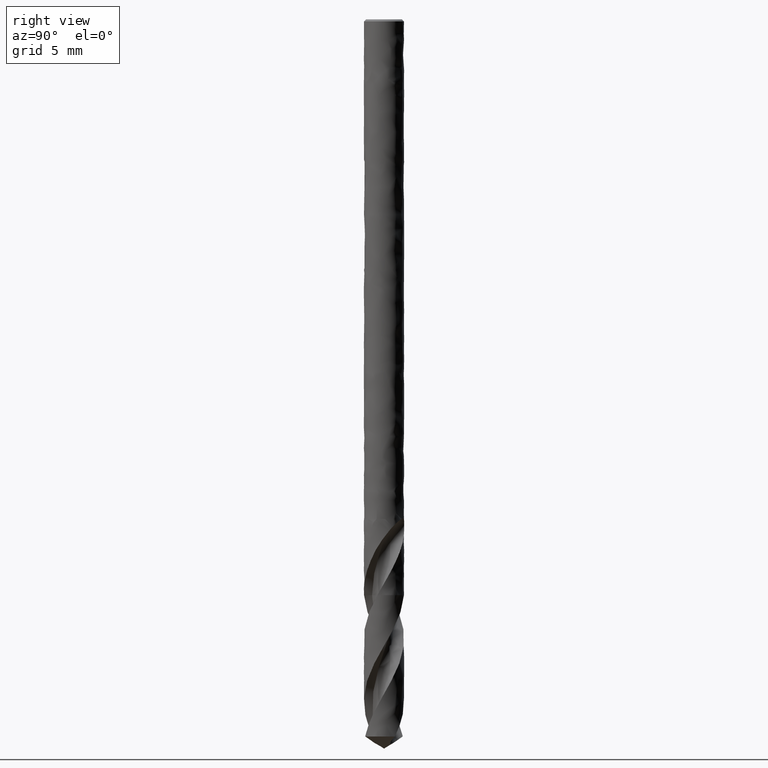
[diagram: clean part render]
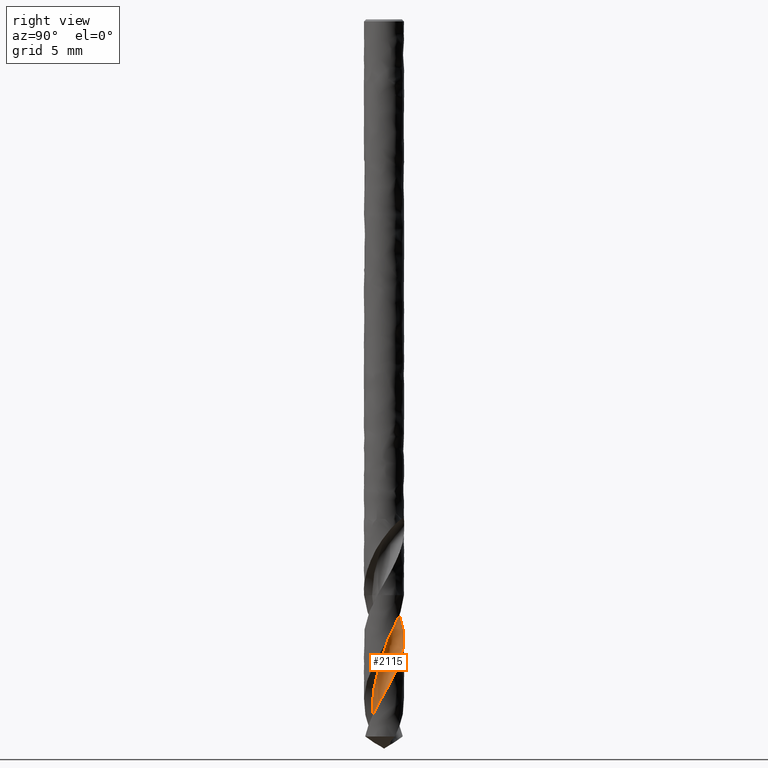
[diagram: same view with one face highlighted and labeled with its STEP entity id]
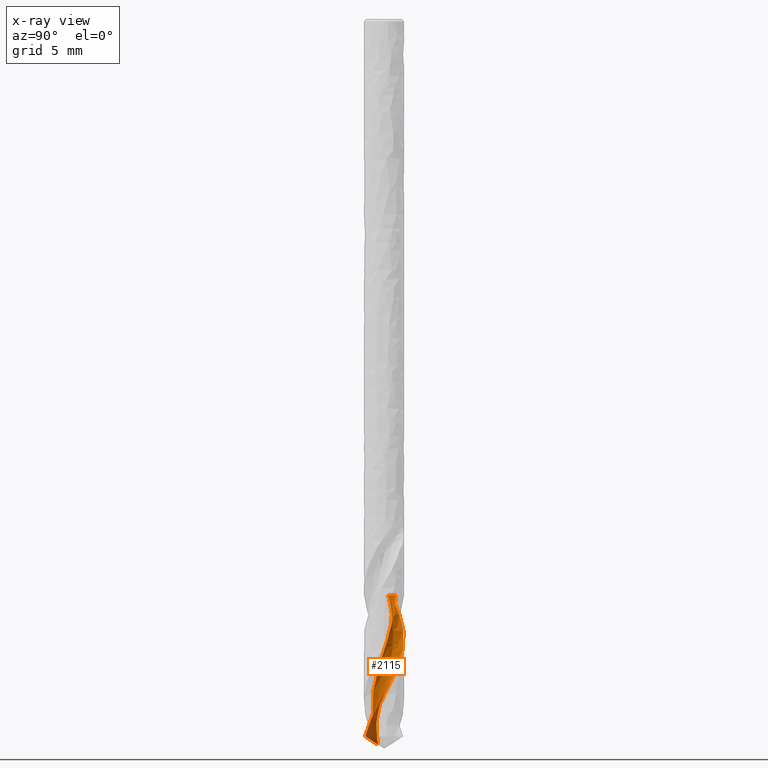
[diagram: x-ray of the same camera — body ghosted, the highlighted face saturated]
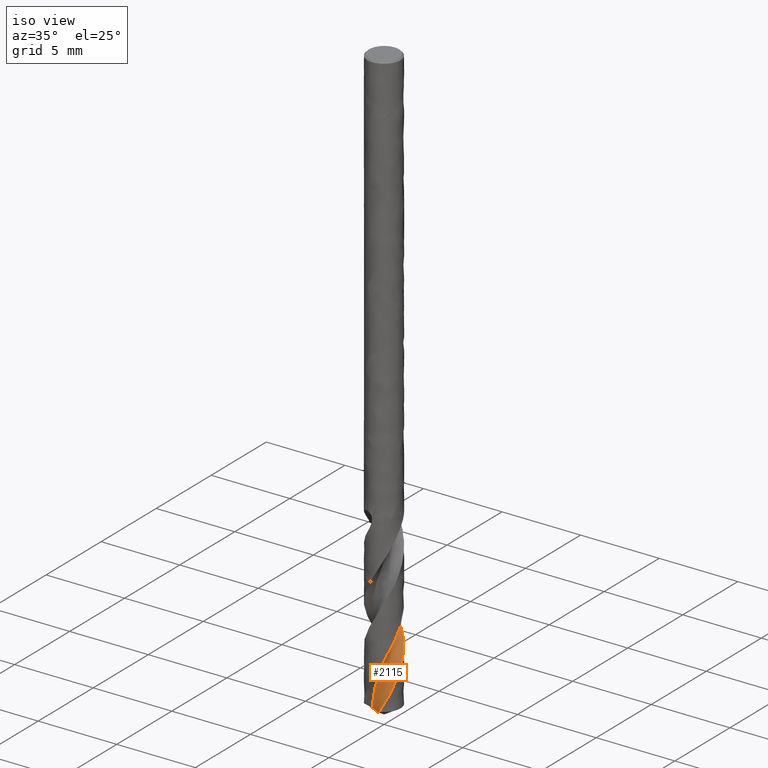
[diagram: same view with one face highlighted and labeled with its STEP entity id]
A machine part, right view. The second image highlights one B-rep face of the part: STEP entity #2115.
The next image is the same camera in x-ray: the body ghosted, the highlighted face saturated — about 0% of this face is hidden behind the body in this view.
A second angle (iso view) of the same face is appended — the face is thin or edge-on in the first view.
In plain terms, the highlighted face is a freeform B-spline surface patch.
Its self-contained STEP definition (entity closure, byte-faithful):
#1599 = VERTEX_POINT('', #1600);
#1600 = CARTESIAN_POINT('', (-0.989390204592491, 0.338738397540222, -30.));
#1703 = VERTEX_POINT('', #1704);
#1704 = CARTESIAN_POINT('', (-0.0081282973675064, 0.621970463097254, -30.));
#1710 = EDGE_CURVE('', #1703, #1599, #1711, .T.);
#1711 = B_SPLINE_CURVE_WITH_KNOTS('', 3, (#1712, #1713, #1714, #1715, #1716, #1717, #1718, #1719, #1720, #1721, #1722, #1723, #1724, #1725, #1726, #1727, #1728, #1729, #1730, #1731, #1732, #1733, #1734, #1735, #1736, #1737, #1738, #1739, #1740, #1741, #1742, #1743, #1744, #1745, #1746, #1747, #1748, #1749, #1750, #1751, #1752, #1753, #1754, #1755, #1756, #1757), .UNSPECIFIED., .F., .U., (4, 3, 3, 3, 3, 3, 3, 3, 3, 3, 3, 3, 3, 3, 3, 4), (0., 0.0883401907301089, 0.176447770333646, 0.264331218393826, 0.351996399852826, 0.439446834063498, 0.52668385625376, 0.584820149875085, 0.610738380480793, 0.699044365433473, 0.787119138271106, 0.874970779840194, 0.962604802702614, 1.05002440330233, 1.13723060942003, 1.19592757691678), .UNSPECIFIED.);
#1712 = CARTESIAN_POINT('', (-0.00812829736750605, 0.621970463097252, -30.));
#1713 = CARTESIAN_POINT('', (-0.0176664654834315, 0.59411129457021, -30.));
#1714 = CARTESIAN_POINT('', (-0.0292123244834765, 0.566861669460078, -30.));
#1715 = CARTESIAN_POINT('', (-0.0425926385168949, 0.54063044534848, -30.));
#1716 = CARTESIAN_POINT('', (-0.0559377204561162, 0.514468291436318, -30.));
#1717 = CARTESIAN_POINT('', (-0.0711740399842842, 0.489188828805253, -30.));
#1718 = CARTESIAN_POINT('', (-0.0880741868528203, 0.465169367006327, -30.));
#1719 = CARTESIAN_POINT('', (-0.104931342459791, 0.441211006863669, -30.));
#1720 = CARTESIAN_POINT('', (-0.123527374527527, 0.418387474144315, -30.));
#1721 = CARTESIAN_POINT('', (-0.143586132381245, 0.397037697816474, -30.));
#1722 = CARTESIAN_POINT('', (-0.163595072470671, 0.375740945615678, -30.));
#1723 = CARTESIAN_POINT('', (-0.18515811865467, 0.355805578966732, -30.));
#1724 = CARTESIAN_POINT('', (-0.207956642869816, 0.337526174397222, -30.));
#1725 = CARTESIAN_POINT('', (-0.230699319138722, 0.319291547603416, -30.));
#1726 = CARTESIAN_POINT('', (-0.254783003573362, 0.302615257142334, -30.));
#1727 = CARTESIAN_POINT('', (-0.279853556688851, 0.287742520182878, -30.));
#1728 = CARTESIAN_POINT('', (-0.304862928205397, 0.272906078307285, -30.));
#1729 = CARTESIAN_POINT('', (-0.330976466204993, 0.259791901975459, -30.));
#1730 = CARTESIAN_POINT('', (-0.357812048160874, 0.248591892499138, -30.));
#1731 = CARTESIAN_POINT('', (-0.375695754331903, 0.241128008208626, -30.));
#1732 = CARTESIAN_POINT('', (-0.393947655706699, 0.234491724544062, -30.));
#1733 = CARTESIAN_POINT('', (-0.412448896149057, 0.228726256895386, -30.));
#1734 = CARTESIAN_POINT('', (-0.420697089943454, 0.226155905213846, -30.));
#1735 = CARTESIAN_POINT('', (-0.429000520278856, 0.223756533991124, -30.));
#1736 = CARTESIAN_POINT('', (-0.437348426126049, 0.221531252749764, -30.));
#1737 = CARTESIAN_POINT('', (-0.465790570165242, 0.213949498624477, -30.));
#1738 = CARTESIAN_POINT('', (-0.494843464924717, 0.208373360789011, -30.));
#1739 = CARTESIAN_POINT('', (-0.524071532533718, 0.204886439940149, -30.));
#1740 = CARTESIAN_POINT('', (-0.553223072109718, 0.201408648918047, -30.));
#1741 = CARTESIAN_POINT('', (-0.582693973668915, 0.199991782738162, -30.));
#1742 = CARTESIAN_POINT('', (-0.612044694472524, 0.200656973201974, -30.));
#1743 = CARTESIAN_POINT('', (-0.641321057280594, 0.201320478452334, -30.));
#1744 = CARTESIAN_POINT('', (-0.67062284091418, 0.204058738032074, -30.));
#1745 = CARTESIAN_POINT('', (-0.699515228256855, 0.208831118164451, -30.));
#1746 = CARTESIAN_POINT('', (-0.72833604580466, 0.213591676557659, -30.));
#1747 = CARTESIAN_POINT('', (-0.756891529550386, 0.220399700544904, -30.));
#1748 = CARTESIAN_POINT('', (-0.784760025909286, 0.229154662054413, -30.));
#1749 = CARTESIAN_POINT('', (-0.812560333842592, 0.237888201990481, -30.));
#1750 = CARTESIAN_POINT('', (-0.839813357230459, 0.248601944941351, -30.));
#1751 = CARTESIAN_POINT('', (-0.86611863442296, 0.261138460917778, -30.));
#1752 = CARTESIAN_POINT('', (-0.89235969945981, 0.273644374794508, -30.));
#1753 = CARTESIAN_POINT('', (-0.91778571903291, 0.288025159349685, -30.));
#1754 = CARTESIAN_POINT('', (-0.942024893006842, 0.304070526943537, -30.));
#1755 = CARTESIAN_POINT('', (-0.958339855785701, 0.314870382390275, -30.));
#1756 = CARTESIAN_POINT('', (-0.974163304934627, 0.326451965391084, -30.));
#1757 = CARTESIAN_POINT('', (-0.98939020459249, 0.338738397540221, -30.));
#1769 = VERTEX_POINT('', #1770);
#1770 = CARTESIAN_POINT('', (0.414746518957032, -0.964616672576738, -37.3041250124934));
#1873 = EDGE_CURVE('', #1769, #1874, #1876, .T.);
#1874 = VERTEX_POINT('', #1875);
#1875 = CARTESIAN_POINT('', (0.380658873556615, -0.978569783910481, -37.3690963500211));
#1876 = CIRCLE('', #1877, 4.31697492285645);
#1877 = AXIS2_PLACEMENT_3D('', #1878, #1879, #1880);
#1878 = CARTESIAN_POINT('', (-1.23375176341107, 3.0250589689259, -37.3389699574999));
#1879 = DIRECTION('', (0.805512264070602, 0.328523171466718, -0.493175950590965));
#1880 = DIRECTION('', (0.38186422482399, -0.924183186865683, 0.00807161163360696));
#1985 = EDGE_CURVE('', #1769, #1599, #1986, .T.);
#1986 = (
   BOUNDED_CURVE ()
   B_SPLINE_CURVE (3, (#1987, #1988, #1989, #1990, #1991, #1992, #1993, #1994, #1995, #1996, #1997, #1998, #1999, #2000, #2001, #2002, #2003, #2004, #2005, #2006, #2007, #2008, #2009, #2010, #2011, #2012, #2013, #2014, #2015, #2016, #2017, #2018, #2019, #2020, #2021, #2022, #2023, #2024, #2025, #2026, #2027, #2028), .UNSPECIFIED., .F., .U.)
   B_SPLINE_CURVE_WITH_KNOTS ((4, 1, 1, 1, 1, 1, 1, 1, 1, 1, 1, 1, 1, 1, 1, 1, 1, 1, 1, 1, 1, 1, 1, 1, 1, 1, 1, 1, 1, 1, 1, 1, 1, 1, 1, 1, 1, 1, 1, 4), (0.74587498750658, 0.77741935483871, 0.971774193548387, 1.16612903225806, 1.36048387096774, 1.55483870967742, 1.7491935483871, 1.94354838709677, 2.13790322580645, 2.33225806451613, 2.52661290322581, 2.72096774193548, 2.91532258064516, 3.10967741935484, 3.30403225806452, 3.49838709677419, 3.69274193548387, 3.88709677419355, 4.08145161290323, 4.2758064516129, 4.47016129032258, 4.66451612903226, 4.85887096774194, 5.05322580645161, 5.24758064516129, 5.44193548387097, 5.63629032258065, 5.83064516129032, 6.025, 6.21935483870968, 6.41370967741936, 6.60806451612903, 6.80241935483871, 6.99677419354839, 7.19112903225806, 7.38548387096774, 7.57983870967742, 7.7741935483871, 7.96854838709677, 8.05), .UNSPECIFIED.)
   CURVE ()
   GEOMETRIC_REPRESENTATION_ITEM ()
   RATIONAL_B_SPLINE_CURVE ((1., 1., 1., 1., 1., 1., 1., 1., 1., 1., 1., 1., 1., 1., 1., 1., 1., 1., 1., 1., 1., 1., 1., 1., 1., 1., 1., 1., 1., 1., 1., 1., 1., 1., 1., 1., 1., 1., 1., 1., 1., 1.))
   REPRESENTATION_ITEM ('')
);
#1987 = CARTESIAN_POINT('', (0.414746518957032, -0.964616672576738, -37.3041250124934));
#1988 = CARTESIAN_POINT('', (0.4202151141175, -0.962118653907839, -37.2936102233827));
#1989 = CARTESIAN_POINT('', (0.459217766386085, -0.943900164336568, -37.2183104880354));
#1990 = CARTESIAN_POINT('', (0.529574978386443, -0.90565383051671, -37.0782258064516));
#1991 = CARTESIAN_POINT('', (0.620901534711613, -0.842821003209366, -36.8838709677419));
#1992 = CARTESIAN_POINT('', (0.704980513974399, -0.770941911183171, -36.6895161290323));
#1993 = CARTESIAN_POINT('', (0.780933186865598, -0.690832317498943, -36.4951612903226));
#1994 = CARTESIAN_POINT('', (0.847970582937893, -0.603391429389025, -36.3008064516129));
#1995 = CARTESIAN_POINT('', (0.905401230281192, -0.509592288943727, -36.1064516129032));
#1996 = CARTESIAN_POINT('', (0.952637861196604, -0.410471398980581, -35.9120967741936));
#1997 = CARTESIAN_POINT('', (0.989203044485623, -0.307117780833926, -35.7177419354839));
#1998 = CARTESIAN_POINT('', (1.01473369007466, -0.200661548959796, -35.5233870967742));
#1999 = CARTESIAN_POINT('', (1.02898438934024, -0.092262122277869, -35.3290322580645));
#2000 = CARTESIAN_POINT('', (1.03182956377424, 0.0169038134656492, -35.1346774193548));
#2001 = CARTESIAN_POINT('', (1.02326440637361, 0.125654474101485, -34.9403225806452));
#2002 = CARTESIAN_POINT('', (1.00340461132918, 0.232815157965745, -34.7459677419355));
#2003 = CARTESIAN_POINT('', (0.972484898913985, 0.33723032137245, -34.5516129032258));
#2004 = CARTESIAN_POINT('', (0.930856353630322, 0.437775432153703, -34.3572580645161));
#2005 = CARTESIAN_POINT('', (0.878982604630458, 0.533368487261048, -34.1629032258065));
#2006 = CARTESIAN_POINT('', (0.817434888076038, 0.622981083899909, -33.9685483870968));
#2007 = CARTESIAN_POINT('', (0.746886041363156, 0.705648938102886, -33.7741935483871));
#2008 = CARTESIAN_POINT('', (0.668103488930987, 0.780481750001662, -33.5798387096774));
#2009 = CARTESIAN_POINT('', (0.581941288613748, 0.84667232128248, -33.3854838709677));
#2010 = CARTESIAN_POINT('', (0.489331316114671, 0.903504837353687, -33.1911290322581));
#2011 = CARTESIAN_POINT('', (0.391273673107693, 0.950362234556308, -32.9967741935484));
#2012 = CARTESIAN_POINT('', (0.288826411643974, 0.986732581245569, -32.8024193548387));
#2013 = CARTESIAN_POINT('', (0.18309467389795, 1.01221441069289, -32.608064516129));
#2014 = CARTESIAN_POINT('', (0.0752193517792459, 1.02652095343032, -32.4137096774194));
#2015 = CARTESIAN_POINT('', (-0.0336346244834258, 1.02948322680406, -32.2193548387097));
#2016 = CARTESIAN_POINT('', (-0.142290256052086, 1.02105195003878, -32.025));
#2017 = CARTESIAN_POINT('', (-0.249570588103148, 1.00129826395557, -31.8306451612903));
#2018 = CARTESIAN_POINT('', (-0.354310848353021, 0.970413245542477, -31.6362903225806));
#2019 = CARTESIAN_POINT('', (-0.455370493853069, 0.928706218769427, -31.441935483871));
#2020 = CARTESIAN_POINT('', (-0.551645048898602, 0.876601874235256, -31.2475806451613));
#2021 = CARTESIAN_POINT('', (-0.642077618190537, 0.814636221496981, -31.0532258064516));
#2022 = CARTESIAN_POINT('', (-0.725669962555841, 0.743451408585147, -30.8588709677419));
#2023 = CARTESIAN_POINT('', (-0.801493025597867, 0.663789455334788, -30.6645161290323));
#2024 = CARTESIAN_POINT('', (-0.86869681338132, 0.576484952553307, -30.4701612903226));
#2025 = CARTESIAN_POINT('', (-0.926519500425907, 0.482456807895692, -30.2758064516129));
#2026 = CARTESIAN_POINT('', (-0.965044486718553, 0.402015911788155, -30.1190860215054));
#2027 = CARTESIAN_POINT('', (-0.984083598341404, 0.353260094962428, -30.0271505376344));
#2028 = CARTESIAN_POINT('', (-0.989390204592491, 0.338738397540222, -30.));
#2115 = ADVANCED_FACE('', (#2116), #2254, .T.);
#2116 = FACE_OUTER_BOUND('', #2117, .T.);
#2117 = EDGE_LOOP('', (#2118, #2119, #2167, #2252, #2253));
#2118 = ORIENTED_EDGE('', *, *, #1710, .F.);
#2119 = ORIENTED_EDGE('', *, *, #2120, .F.);
#2120 = EDGE_CURVE('', #2121, #1703, #2123, .T.);
#2121 = VERTEX_POINT('', #2122);
#2122 = CARTESIAN_POINT('', (-0.526142050315062, -0.341171208440556, -37.6232152339215));
#2123 = B_SPLINE_CURVE_WITH_KNOTS('', 3, (#2124, #2125, #2126, #2127, #2128, #2129, #2130, #2131, #2132, #2133, #2134, #2135, #2136, #2137, #2138, #2139, #2140, #2141, #2142, #2143, #2144, #2145, #2146, #2147, #2148, #2149, #2150, #2151, #2152, #2153, #2154, #2155, #2156, #2157, #2158, #2159, #2160, #2161, #2162, #2163, #2164, #2165, #2166), .UNSPECIFIED., .F., .U., (4, 1, 1, 1, 1, 1, 1, 1, 1, 1, 1, 1, 1, 1, 1, 1, 1, 1, 1, 1, 1, 1, 1, 1, 1, 1, 1, 1, 1, 1, 1, 1, 1, 1, 1, 1, 1, 1, 1, 1, 4), (0.426784766078523, 0.583064516129032, 0.77741935483871, 0.971774193548387, 1.16612903225806, 1.36048387096774, 1.55483870967742, 1.7491935483871, 1.94354838709677, 2.13790322580645, 2.33225806451613, 2.52661290322581, 2.72096774193548, 2.91532258064516, 3.10967741935484, 3.30403225806452, 3.49838709677419, 3.69274193548387, 3.88709677419355, 4.08145161290323, 4.2758064516129, 4.47016129032258, 4.66451612903226, 4.85887096774194, 5.05322580645161, 5.24758064516129, 5.44193548387097, 5.63629032258065, 5.83064516129032, 6.025, 6.21935483870968, 6.41370967741936, 6.60806451612903, 6.80241935483871, 6.99677419354839, 7.19112903225806, 7.38548387096774, 7.57983870967742, 7.7741935483871, 7.96854838709677, 8.05), .UNSPECIFIED.);
#2124 = CARTESIAN_POINT('', (-0.526142050315062, -0.341171208440556, -37.6232152339215));
#2125 = CARTESIAN_POINT('', (-0.516105033938284, -0.355858412698825, -37.5711219839046));
#2126 = CARTESIAN_POINT('', (-0.492220866732757, -0.387828226709916, -37.4542437876512));
#2127 = CARTESIAN_POINT('', (-0.45064864692343, -0.433713145349973, -37.2725806451613));
#2128 = CARTESIAN_POINT('', (-0.401401515631753, -0.477780679634085, -37.0782258064516));
#2129 = CARTESIAN_POINT('', (-0.347939388904613, -0.516372148714711, -36.8838709677419));
#2130 = CARTESIAN_POINT('', (-0.290859367390927, -0.549094518377297, -36.6895161290323));
#2131 = CARTESIAN_POINT('', (-0.230794159708197, -0.575618706924926, -36.4951612903226));
#2132 = CARTESIAN_POINT('', (-0.168405265291884, -0.595682601360359, -36.3008064516129));
#2133 = CARTESIAN_POINT('', (-0.104376043649314, -0.609093471026532, -36.1064516129032));
#2134 = CARTESIAN_POINT('', (-0.039404561989231, -0.615729649071185, -35.9120967741936));
#2135 = CARTESIAN_POINT('', (0.0258036606906008, -0.615541499021846, -35.7177419354839));
#2136 = CARTESIAN_POINT('', (0.0905429546465419, -0.608551653044464, -35.5233870967742));
#2137 = CARTESIAN_POINT('', (0.154114771059895, -0.594854525348494, -35.3290322580645));
#2138 = CARTESIAN_POINT('', (0.215834854845357, -0.574615108268755, -35.1346774193548));
#2139 = CARTESIAN_POINT('', (0.27504024925523, -0.548067065919291, -34.9403225806452));
#2140 = CARTESIAN_POINT('', (0.331096065159513, -0.515510146588509, -34.7459677419355));
#2141 = CARTESIAN_POINT('', (0.383401950293094, -0.477306941337252, -34.5516129032258));
#2142 = CARTESIAN_POINT('', (0.431398196835692, -0.433879022211142, -34.3572580645161));
#2143 = CARTESIAN_POINT('', (0.474571429265047, -0.38570249912175, -34.1629032258065));
#2144 = CARTESIAN_POINT('', (0.512459818502224, -0.333303039721179, -33.9685483870968));
#2145 = CARTESIAN_POINT('', (0.544657772904084, -0.277250401456294, -33.7741935483871));
#2146 = CARTESIAN_POINT('', (0.570820061615212, -0.218152529402614, -33.5798387096774));
#2147 = CARTESIAN_POINT('', (0.590665331127154, -0.156649277409757, -33.3854838709677));
#2148 = CARTESIAN_POINT('', (0.603978981562124, -0.0934058135097181, -33.1911290322581));
#2149 = CARTESIAN_POINT('', (0.610615375154459, -0.0291057734191435, -32.9967741935484));
#2150 = CARTESIAN_POINT('', (0.610499355597011, 0.0355557717153783, -32.8024193548387));
#2151 = CARTESIAN_POINT('', (0.603627063300917, 0.099879465443065, -32.608064516129));
#2152 = CARTESIAN_POINT('', (0.590066038133553, 0.163168864978005, -32.4137096774193));
#2153 = CARTESIAN_POINT('', (0.569954607798243, 0.224737619447332, -32.2193548387097));
#2154 = CARTESIAN_POINT('', (0.543500566646285, 0.283916557928926, -32.025));
#2155 = CARTESIAN_POINT('', (0.51097915631376, 0.34006061847532, -31.8306451612903));
#2156 = CARTESIAN_POINT('', (0.472730366095309, 0.392555550617507, -31.6362903225806));
#2157 = CARTESIAN_POINT('', (0.429155577361056, 0.440824325733245, -31.441935483871));
#2158 = CARTESIAN_POINT('', (0.380713582498908, 0.484333192170945, -31.2475806451613));
#2159 = CARTESIAN_POINT('', (0.32791601491458, 0.522597314997597, -31.0532258064516));
#2160 = CARTESIAN_POINT('', (0.271322231955988, 0.555185944144197, -30.8588709677419));
#2161 = CARTESIAN_POINT('', (0.211533699208054, 0.581727057743867, -30.6645161290323));
#2162 = CARTESIAN_POINT('', (0.149187924877569, 0.601911436229346, -30.4701612903226));
#2163 = CARTESIAN_POINT('', (0.0849520149141438, 0.615496112376351, -30.2758064516129));
#2164 = CARTESIAN_POINT('', (0.032186760187741, 0.620988321804073, -30.1190860215054));
#2165 = CARTESIAN_POINT('', (0.00106758548481449, 0.621902222022237, -30.0271505376344));
#2166 = CARTESIAN_POINT('', (-0.00812829736750639, 0.621970463097254, -30.));
#2167 = ORIENTED_EDGE('', *, *, #2168, .T.);
#2168 = EDGE_CURVE('', #2121, #1874, #2169, .T.);
#2169 = B_SPLINE_CURVE_WITH_KNOTS('', 3, (#2170, #2171, #2172, #2173, #2174, #2175, #2176, #2177, #2178, #2179, #2180, #2181, #2182, #2183, #2184, #2185, #2186, #2187, #2188, #2189, #2190, #2191, #2192, #2193, #2194, #2195, #2196, #2197, #2198, #2199, #2200, #2201, #2202, #2203, #2204, #2205, #2206, #2207, #2208, #2209, #2210, #2211, #2212, #2213, #2214, #2215, #2216, #2217, #2218, #2219, #2220, #2221, #2222, #2223, #2224, #2225, #2226, #2227, #2228, #2229, #2230, #2231, #2232, #2233, #2234, #2235, #2236, #2237, #2238, #2239, #2240, #2241, #2242, #2243, #2244, #2245, #2246, #2247, #2248, #2249, #2250, #2251), .UNSPECIFIED., .F., .U., (4, 3, 3, 3, 3, 3, 3, 3, 3, 3, 3, 3, 3, 3, 3, 3, 3, 3, 3, 3, 3, 3, 3, 3, 3, 3, 3, 4), (0., 0.0584200043990707, 0.116781054589472, 0.175027823026524, 0.2138033855006, 0.252516026943997, 0.291170928282463, 0.329791560745907, 0.368418101904686, 0.40709293627138, 0.445840872019873, 0.484660773334097, 0.523533483837143, 0.562435050360691, 0.601345207776894, 0.618657088241367, 0.63600600736375, 0.695207347077197, 0.75414632257882, 0.812888178564505, 0.871479250392525, 0.929951423746157, 0.988326386654931, 1.04661874157269, 1.13380968116754, 1.22078361959114, 1.30755334033018, 1.33799535496574), .UNSPECIFIED.);
#2170 = CARTESIAN_POINT('', (-0.526142050315061, -0.341171208440557, -37.6232152339215));
#2171 = CARTESIAN_POINT('', (-0.510873079262389, -0.334301413507828, -37.6331588353212));
#2172 = CARTESIAN_POINT('', (-0.495093548102804, -0.328382703502577, -37.6430425673347));
#2173 = CARTESIAN_POINT('', (-0.478911309171095, -0.323535212777617, -37.6527300719179));
#2174 = CARTESIAN_POINT('', (-0.462745400451966, -0.318692613869811, -37.662407800412));
#2175 = CARTESIAN_POINT('', (-0.446119601572104, -0.31490265598158, -37.6719253372805));
#2176 = CARTESIAN_POINT('', (-0.429162279095745, -0.312279761711148, -37.6810913308318));
#2177 = CARTESIAN_POINT('', (-0.412238162199793, -0.309662003553845, -37.6902393756688));
#2178 = CARTESIAN_POINT('', (-0.394911217867674, -0.308197527528545, -37.699076872948));
#2179 = CARTESIAN_POINT('', (-0.37734185702581, -0.307981549202975, -37.707337383089));
#2180 = CARTESIAN_POINT('', (-0.365645725768511, -0.307837769877857, -37.7128365023643));
#2181 = CARTESIAN_POINT('', (-0.353810186951691, -0.308246089783427, -37.7180936854078));
#2182 = CARTESIAN_POINT('', (-0.341896179772468, -0.309222916844777, -37.7230092437191));
#2183 = CARTESIAN_POINT('', (-0.33000150542979, -0.310198158810732, -37.7279168255635));
#2184 = CARTESIAN_POINT('', (-0.317996696079643, -0.311743407683616, -37.7324962449879));
#2185 = CARTESIAN_POINT('', (-0.305958642164865, -0.313856657938518, -37.7366360717324));
#2186 = CARTESIAN_POINT('', (-0.293938543069761, -0.315966756269736, -37.7407697239039));
#2187 = CARTESIAN_POINT('', (-0.281848344763279, -0.318650423507466, -37.7444763222319));
#2188 = CARTESIAN_POINT('', (-0.269783619270303, -0.321877004839784, -37.7476471185331));
#2189 = CARTESIAN_POINT('', (-0.25772958956378, -0.325100725698822, -37.7508151038163));
#2190 = CARTESIAN_POINT('', (-0.245660124115527, -0.328877743919428, -37.7534571829927));
#2191 = CARTESIAN_POINT('', (-0.233684861141209, -0.333141733805268, -37.7554917851766));
#2192 = CARTESIAN_POINT('', (-0.221707766032719, -0.337406376052696, -37.7575266986409));
#2193 = CARTESIAN_POINT('', (-0.209782867846159, -0.342172727158662, -37.7589600072923));
#2194 = CARTESIAN_POINT('', (-0.198018474664816, -0.347343302925337, -37.7597619130594));
#2195 = CARTESIAN_POINT('', (-0.186239372936737, -0.35252034325454, -37.760564821417));
#2196 = CARTESIAN_POINT('', (-0.174581632927971, -0.358118863306332, -37.7607379648251));
#2197 = CARTESIAN_POINT('', (-0.163132321927407, -0.364028560025068, -37.7603108720645));
#2198 = CARTESIAN_POINT('', (-0.151661369969137, -0.369949426979003, -37.759882972033));
#2199 = CARTESIAN_POINT('', (-0.140365940219259, -0.376198748135995, -37.7588531192033));
#2200 = CARTESIAN_POINT('', (-0.129300399638559, -0.382675433961068, -37.7572946407363));
#2201 = CARTESIAN_POINT('', (-0.118214307307872, -0.389164148771698, -37.7557332677464));
#2202 = CARTESIAN_POINT('', (-0.10733301035842, -0.395895370840203, -37.7536396020892));
#2203 = CARTESIAN_POINT('', (-0.096680460442874, -0.40279041152126, -37.7511049733245));
#2204 = CARTESIAN_POINT('', (-0.0860134191839477, -0.409694831966121, -37.7485668965425));
#2205 = CARTESIAN_POINT('', (-0.0755574283614529, -0.416774990019347, -37.7455836202527));
#2206 = CARTESIAN_POINT('', (-0.0653160211301306, -0.423976329669389, -37.7422440229989));
#2207 = CARTESIAN_POINT('', (-0.0550670114894777, -0.431183015023446, -37.7389019466927));
#2208 = CARTESIAN_POINT('', (-0.0450206814137725, -0.438519602510633, -37.7351996590196));
#2209 = CARTESIAN_POINT('', (-0.0351701536661156, -0.445951034603703, -37.7312135698859));
#2210 = CARTESIAN_POINT('', (-0.0253174505606507, -0.453384107829536, -37.7272266004776));
#2211 = CARTESIAN_POINT('', (-0.0156526529992822, -0.460918179452452, -37.7229526440412));
#2212 = CARTESIAN_POINT('', (-0.00616522546124612, -0.468531792945996, -37.7184533252695));
#2213 = CARTESIAN_POINT('', (-0.00194408572909389, -0.471919236622799, -37.7164514914575));
#2214 = CARTESIAN_POINT('', (0.00224274427454563, -0.475323188113449, -37.7144044992362));
#2215 = CARTESIAN_POINT('', (0.00639621769091359, -0.478742356963323, -37.7123168984917));
#2216 = CARTESIAN_POINT('', (0.0105585774371821, -0.482168841103158, -37.7102248313387));
#2217 = CARTESIAN_POINT('', (0.0146878164571714, -0.485610921634732, -37.7080917897959));
#2218 = CARTESIAN_POINT('', (0.0187848573155333, -0.489067577257234, -37.7059218669164));
#2219 = CARTESIAN_POINT('', (0.0327655731148722, -0.500863046608181, -37.6985172360784));
#2220 = CARTESIAN_POINT('', (0.0463794836340001, -0.512832918374856, -37.6906829028149));
#2221 = CARTESIAN_POINT('', (0.0596572837573953, -0.524953554146319, -37.6825458098636));
#2222 = CARTESIAN_POINT('', (0.0728762402873687, -0.53702047456157, -37.6744447782919));
#2223 = CARTESIAN_POINT('', (0.0857700628271889, -0.549244805422218, -37.6660376918205));
#2224 = CARTESIAN_POINT('', (0.0983578895519452, -0.561617672606227, -37.6574100114503));
#2225 = CARTESIAN_POINT('', (0.110903616693368, -0.573949159132202, -37.6488111860808));
#2226 = CARTESIAN_POINT('', (0.12315075503129, -0.586433889044854, -37.639988763494));
#2227 = CARTESIAN_POINT('', (0.135107925059267, -0.599069621856244, -37.6310018302894));
#2228 = CARTESIAN_POINT('', (0.147034402291103, -0.611672920072294, -37.6220379655959));
#2229 = CARTESIAN_POINT('', (0.158676524486894, -0.624431071004834, -37.6129067885233));
#2230 = CARTESIAN_POINT('', (0.170034166775732, -0.637344698892854, -37.6036505996889));
#2231 = CARTESIAN_POINT('', (0.181368761076222, -0.650232121241244, -37.5944131943773));
#2232 = CARTESIAN_POINT('', (0.192423576250873, -0.663278587833124, -37.5850480334057));
#2233 = CARTESIAN_POINT('', (0.203191163818535, -0.676485765277615, -37.575586645476));
#2234 = CARTESIAN_POINT('', (0.213940850187773, -0.689670985686458, -37.5661409871777));
#2235 = CARTESIAN_POINT('', (0.224407566560384, -0.703020538546058, -37.5565962826569));
#2236 = CARTESIAN_POINT('', (0.234577455836257, -0.716536147528745, -37.5469771391972));
#2237 = CARTESIAN_POINT('', (0.244732953426378, -0.73003263020711, -37.5373716080479));
#2238 = CARTESIAN_POINT('', (0.254595708942503, -0.743699078871782, -37.527688623838));
#2239 = CARTESIAN_POINT('', (0.264145923521535, -0.757536618276897, -37.5179484334211));
#2240 = CARTESIAN_POINT('', (0.27843068150829, -0.778234153384459, -37.5033795185869));
#2241 = CARTESIAN_POINT('', (0.292026843050022, -0.799328670610797, -37.4886731012147));
#2242 = CARTESIAN_POINT('', (0.304843255092869, -0.820818615760973, -37.4738873854895));
#2243 = CARTESIAN_POINT('', (0.31762776959639, -0.842255076646735, -37.4591384685149));
#2244 = CARTESIAN_POINT('', (0.329648270484814, -0.864105141396806, -37.4442965390534));
#2245 = CARTESIAN_POINT('', (0.340782832021158, -0.886356030034343, -37.4294164949488));
#2246 = CARTESIAN_POINT('', (0.351891249238679, -0.90855467284929, -37.4145713896799));
#2247 = CARTESIAN_POINT('', (0.362130658910309, -0.931178135594457, -37.3996709941363));
#2248 = CARTESIAN_POINT('', (0.371344890004598, -0.954194633504036, -37.3847749344));
#2249 = CARTESIAN_POINT('', (0.374577581725151, -0.962269668899507, -37.379548847873));
#2250 = CARTESIAN_POINT('', (0.377684867534428, -0.970395454286946, -37.37432168218));
#2251 = CARTESIAN_POINT('', (0.380658873556618, -0.978569783910479, -37.3690963500211));
#2252 = ORIENTED_EDGE('', *, *, #1873, .F.);
#2253 = ORIENTED_EDGE('', *, *, #1985, .T.);
#2254 = (
   BOUNDED_SURFACE ()
   B_SPLINE_SURFACE (3, 2, ((#2255, #2256, #2257, #2258, #2259), (#2260, #2261, #2262, #2263, #2264), (#2265, #2266, #2267, #2268, #2269), (#2270, #2271, #2272, #2273, #2274), (#2275, #2276, #2277, #2278, #2279), (#2280, #2281, #2282, #2283, #2284), (#2285, #2286, #2287, #2288, #2289), (#2290, #2291, #2292, #2293, #2294), (#2295, #2296, #2297, #2298, #2299), (#2300, #2301, #2302, #2303, #2304), (#2305, #2306, #2307, #2308, #2309), (#2310, #2311, #2312, #2313, #2314), (#2315, #2316, #2317, #2318, #2319), (#2320, #2321, #2322, #2323, #2324), (#2325, #2326, #2327, #2328, #2329), (#2330, #2331, #2332, #2333, #2334), (#2335, #2336, #2337, #2338, #2339), (#2340, #2341, #2342, #2343, #2344), (#2345, #2346, #2347, #2348, #2349), (#2350, #2351, #2352, #2353, #2354), (#2355, #2356, #2357, #2358, #2359), (#2360, #2361, #2362, #2363, #2364), (#2365, #2366, #2367, #2368, #2369), (#2370, #2371, #2372, #2373, #2374), (#2375, #2376, #2377, #2378, #2379), (#2380, #2381, #2382, #2383, #2384), (#2385, #2386, #2387, #2388, #2389), (#2390, #2391, #2392, #2393, #2394), (#2395, #2396, #2397, #2398, #2399), (#2400, #2401, #2402, #2403, #2404), (#2405, #2406, #2407, #2408, #2409), (#2410, #2411, #2412, #2413, #2414), (#2415, #2416, #2417, #2418, #2419), (#2420, #2421, #2422, #2423, #2424), (#2425, #2426, #2427, #2428, #2429), (#2430, #2431, #2432, #2433, #2434), (#2435, #2436, #2437, #2438, #2439), (#2440, #2441, #2442, #2443, #2444), (#2445, #2446, #2447, #2448, #2449), (#2450, #2451, #2452, #2453, #2454), (#2455, #2456, #2457, #2458, #2459), (#2460, #2461, #2462, #2463, #2464), (#2465, #2466, #2467, #2468, #2469), (#2470, #2471, #2472, #2473, #2474)), .UNSPECIFIED., .F., .F., .U.)
   B_SPLINE_SURFACE_WITH_KNOTS ((4, 1, 1, 1, 1, 1, 1, 1, 1, 1, 1, 1, 1, 1, 1, 1, 1, 1, 1, 1, 1, 1, 1, 1, 1, 1, 1, 1, 1, 1, 1, 1, 1, 1, 1, 1, 1, 1, 1, 1, 1, 4), (3, 2, 3), (0.289262035174858, 0.388709677419355, 0.583064516129032, 0.77741935483871, 0.971774193548387, 1.16612903225806, 1.36048387096774, 1.55483870967742, 1.7491935483871, 1.94354838709677, 2.13790322580645, 2.33225806451613, 2.52661290322581, 2.72096774193548, 2.91532258064516, 3.10967741935484, 3.30403225806452, 3.49838709677419, 3.69274193548387, 3.88709677419355, 4.08145161290323, 4.2758064516129, 4.47016129032258, 4.66451612903226, 4.85887096774194, 5.05322580645161, 5.24758064516129, 5.44193548387097, 5.63629032258065, 5.83064516129032, 6.025, 6.21935483870968, 6.41370967741936, 6.60806451612903, 6.80241935483871, 6.99677419354839, 7.19112903225806, 7.38548387096774, 7.57983870967742, 7.7741935483871, 7.96854838709677, 8.05000000000025), (0., 0.5, 1.), .UNSPECIFIED.)
   GEOMETRIC_REPRESENTATION_ITEM ()
   RATIONAL_B_SPLINE_SURFACE (((1., 0.887010833178222, 1., 0.887010833178222, 1.), (1., 0.887010833178222, 1., 0.887010833178222, 1.), (1., 0.887010833178222, 1., 0.887010833178222, 1.), (1., 0.887010833178222, 1., 0.887010833178222, 1.), (1., 0.887010833178222, 1., 0.887010833178222, 1.), (1., 0.887010833178222, 1., 0.887010833178222, 1.), (1., 0.887010833178222, 1., 0.887010833178222, 1.), (1., 0.887010833178221, 1., 0.887010833178221, 1.), (1., 0.887010833178222, 1., 0.887010833178222, 1.), (1., 0.887010833178221, 1., 0.887010833178221, 1.), (1., 0.887010833178222, 1., 0.887010833178222, 1.), (1., 0.887010833178222, 1., 0.887010833178222, 1.), (1., 0.887010833178222, 1., 0.887010833178222, 1.), (1., 0.887010833178222, 1., 0.887010833178222, 1.), (1., 0.887010833178222, 1., 0.887010833178222, 1.), (1., 0.887010833178222, 1., 0.887010833178222, 1.), (1., 0.887010833178222, 1., 0.887010833178222, 1.), (1., 0.887010833178222, 1., 0.887010833178222, 1.), (1., 0.887010833178222, 1., 0.887010833178222, 1.), (1., 0.887010833178222, 1., 0.887010833178222, 1.), (1., 0.887010833178222, 1., 0.887010833178222, 1.), (1., 0.887010833178222, 1., 0.887010833178222, 1.), (1., 0.887010833178222, 1., 0.887010833178222, 1.), (1., 0.887010833178221, 1., 0.887010833178221, 1.), (1., 0.887010833178222, 1., 0.887010833178222, 1.), (1., 0.887010833178221, 1., 0.887010833178221, 1.), (1., 0.887010833178222, 1., 0.887010833178222, 1.), (1., 0.887010833178221, 1., 0.887010833178221, 1.), (1., 0.887010833178222, 1., 0.887010833178222, 1.), (1., 0.887010833178221, 1., 0.887010833178221, 1.), (1., 0.887010833178222, 1., 0.887010833178222, 1.), (1., 0.887010833178221, 1., 0.887010833178221, 1.), (1., 0.887010833178222, 1., 0.887010833178222, 1.), (1., 0.887010833178222, 1., 0.887010833178222, 1.), (1., 0.887010833178222, 1., 0.887010833178222, 1.), (1., 0.887010833178222, 1., 0.887010833178222, 1.), (1., 0.887010833178222, 1., 0.887010833178222, 1.), (1., 0.887010833178221, 1., 0.887010833178221, 1.), (1., 0.887010833178222, 1., 0.887010833178222, 1.), (1., 0.887010833178221, 1., 0.887010833178221, 1.), (1., 0.887010833178222, 1., 0.887010833178222, 1.), (1., 0.887010833178222, 1., 0.887010833178222, 1.), (1., 0.887010833178222, 1., 0.887010833178222, 1.), (1., 0.887010833178222, 1., 0.887010833178222, 1.)))
   REPRESENTATION_ITEM ('')
   SURFACE ()
);
#2255 = CARTESIAN_POINT('', (0.165642467570819, -1.04313567848121, -37.7607379648251));
#2256 = CARTESIAN_POINT('', (0.228053845852779, -0.72137267349971, -37.7607379648251));
#2257 = CARTESIAN_POINT('', (0.000278718488335431, -0.485692587646256, -37.7607379648251));
#2258 = CARTESIAN_POINT('', (-0.227496408876108, -0.250012501792801, -37.7607379648251));
#2259 = CARTESIAN_POINT('', (-0.551200678844274, -0.301414419248837, -37.7607379648251));
#2260 = CARTESIAN_POINT('', (0.184393222027378, -1.03967643838238, -37.7275887507436));
#2261 = CARTESIAN_POINT('', (0.240969658682577, -0.716932047095515, -37.7275887507436));
#2262 = CARTESIAN_POINT('', (0.00904384169526628, -0.485468765544215, -37.7275887507436));
#2263 = CARTESIAN_POINT('', (-0.222881975292045, -0.254005483992915, -37.7275887507436));
#2264 = CARTESIAN_POINT('', (-0.545512779158018, -0.311226106923151, -37.7275887507436));
#2265 = CARTESIAN_POINT('', (0.239478084691768, -1.02798080858515, -37.6296545904256));
#2266 = CARTESIAN_POINT('', (0.278750238609997, -0.702800468306065, -37.6296545904256));
#2267 = CARTESIAN_POINT('', (0.0349036802000437, -0.484114822391619, -37.6296545904256));
#2268 = CARTESIAN_POINT('', (-0.208942878209909, -0.265429176477174, -37.6296545904256));
#2269 = CARTESIAN_POINT('', (-0.527944312106635, -0.339743649826787, -37.6296545904256));
#2270 = CARTESIAN_POINT('', (0.32908997941391, -1.00138749861648, -37.466935483871));
#2271 = CARTESIAN_POINT('', (0.339408462893963, -0.67445089979256, -37.466935483871));
#2272 = CARTESIAN_POINT('', (0.0775161185974975, -0.478475363689758, -37.466935483871));
#2273 = CARTESIAN_POINT('', (-0.184376225698968, -0.282499827586956, -37.466935483871));
#2274 = CARTESIAN_POINT('', (-0.495125264277398, -0.384622527191212, -37.466935483871));
#2275 = CARTESIAN_POINT('', (0.431960703679259, -0.95871716304352, -37.2725806451613));
#2276 = CARTESIAN_POINT('', (0.407752851459552, -0.633305202195833, -37.2725806451613));
#2277 = CARTESIAN_POINT('', (0.127305924887188, -0.466486480980429, -37.2725806451613));
#2278 = CARTESIAN_POINT('', (-0.153141001685176, -0.299667759765025, -37.2725806451613));
#2279 = CARTESIAN_POINT('', (-0.45064864692343, -0.433713145349973, -37.2725806451613));
#2280 = CARTESIAN_POINT('', (0.529574978386443, -0.90565383051671, -37.0782258064516));
#2281 = CARTESIAN_POINT('', (0.471270529589162, -0.585355041062585, -37.0782258064516));
#2282 = CARTESIAN_POINT('', (0.17545506345997, -0.449399411263369, -37.0782258064516));
#2283 = CARTESIAN_POINT('', (-0.120360402669222, -0.313443781464153, -37.0782258064516));
#2284 = CARTESIAN_POINT('', (-0.401401515631753, -0.477780679634085, -37.0782258064516));
#2285 = CARTESIAN_POINT('', (0.620901534711613, -0.842821003209366, -36.8838709677419));
#2286 = CARTESIAN_POINT('', (0.529297126058839, -0.531151556742079, -36.8838709677419));
#2287 = CARTESIAN_POINT('', (0.221450331573639, -0.427423244931674, -36.8838709677419));
#2288 = CARTESIAN_POINT('', (-0.0863964629115602, -0.323694933121269, -36.8838709677419));
#2289 = CARTESIAN_POINT('', (-0.347939388904613, -0.51637214871471, -36.8838709677419));
#2290 = CARTESIAN_POINT('', (0.704980513974399, -0.770941911183171, -36.6895161290323));
#2291 = CARTESIAN_POINT('', (0.581229440942389, -0.471308957295348, -36.6895161290323));
#2292 = CARTESIAN_POINT('', (0.264803794764511, -0.40081749984816, -36.6895161290323));
#2293 = CARTESIAN_POINT('', (-0.051621851413368, -0.330326042400972, -36.6895161290323));
#2294 = CARTESIAN_POINT('', (-0.290859367390927, -0.549094518377297, -36.6895161290323));
#2295 = CARTESIAN_POINT('', (0.780933186865598, -0.690832317498943, -36.4951612903226));
#2296 = CARTESIAN_POINT('', (0.626531567042832, -0.406498390112414, -36.4951612903226));
#2297 = CARTESIAN_POINT('', (0.305057718298668, -0.369889551827702, -36.4951612903226));
#2298 = CARTESIAN_POINT('', (-0.0164161304454967, -0.33328071354299, -36.4951612903226));
#2299 = CARTESIAN_POINT('', (-0.230794159708197, -0.575618706924926, -36.4951612903226));
#2300 = CARTESIAN_POINT('', (0.847970582937893, -0.603391429389025, -36.3008064516129));
#2301 = CARTESIAN_POINT('', (0.664740038345044, -0.337440587530529, -36.3008064516129));
#2302 = CARTESIAN_POINT('', (0.341789139758051, -0.33499112659219, -36.3008064516129));
#2303 = CARTESIAN_POINT('', (0.018838241171058, -0.33254166565385, -36.3008064516129));
#2304 = CARTESIAN_POINT('', (-0.168405265291884, -0.595682601360359, -36.3008064516129));
#2305 = CARTESIAN_POINT('', (0.905401230281192, -0.509592288943727, -36.1064516129032));
#2306 = CARTESIAN_POINT('', (0.695468292884866, -0.264898238182926, -36.1064516129032));
#2307 = CARTESIAN_POINT('', (0.37461407487431, -0.296514491383037, -36.1064516129032));
#2308 = CARTESIAN_POINT('', (0.0537598568637537, -0.328130744583147, -36.1064516129032));
#2309 = CARTESIAN_POINT('', (-0.104376043649314, -0.609093471026532, -36.1064516129032));
#2310 = CARTESIAN_POINT('', (0.952637861196604, -0.410471398980581, -35.9120967741936));
#2311 = CARTESIAN_POINT('', (0.718410321961759, -0.189667926298038, -35.9120967741936));
#2312 = CARTESIAN_POINT('', (0.403191308678148, -0.254888224895854, -35.9120967741936));
#2313 = CARTESIAN_POINT('', (0.0879722953945366, -0.320108523493669, -35.9120967741936));
#2314 = CARTESIAN_POINT('', (-0.0394045619892311, -0.615729649071184, -35.9120967741936));
#2315 = CARTESIAN_POINT('', (0.989203044485623, -0.307117780833926, -35.7177419354839));
#2316 = CARTESIAN_POINT('', (0.733343498676704, -0.112571782497214, -35.7177419354839));
#2317 = CARTESIAN_POINT('', (0.427225739939467, -0.210572652065114, -35.7177419354839));
#2318 = CARTESIAN_POINT('', (0.121107981202231, -0.308573521633014, -35.7177419354839));
#2319 = CARTESIAN_POINT('', (0.0258036606906007, -0.615541499021846, -35.7177419354839));
#2320 = CARTESIAN_POINT('', (1.01473369007466, -0.200661548959796, -35.5233870967742));
#2321 = CARTESIAN_POINT('', (0.740130556354082, -0.0344489119911868, -35.5233870967742));
#2322 = CARTESIAN_POINT('', (0.446471248144302, -0.164054978357598, -35.5233870967742));
#2323 = CARTESIAN_POINT('', (0.152811939934521, -0.293661044724008, -35.5233870967742));
#2324 = CARTESIAN_POINT('', (0.0905429546465418, -0.608551653044464, -35.5233870967742));
#2325 = CARTESIAN_POINT('', (1.02898438934024, -0.092262122277869, -35.3290322580645));
#2326 = CARTESIAN_POINT('', (0.738720703623525, 0.0438533109843614, -35.3290322580645));
#2327 = CARTESIAN_POINT('', (0.460733057751973, -0.115844175410415, -35.3290322580645));
#2328 = CARTESIAN_POINT('', (0.182745411880421, -0.275541661805192, -35.3290322580645));
#2329 = CARTESIAN_POINT('', (0.154114771059895, -0.594854525348493, -35.3290322580645));
#2330 = CARTESIAN_POINT('', (1.03182956377424, 0.0169038134656492, -35.1346774193548));
#2331 = CARTESIAN_POINT('', (0.729149868909201, 0.121487998631991, -35.1346774193548));
#2332 = CARTESIAN_POINT('', (0.469869579093384, -0.0664656679550836, -35.1346774193548));
#2333 = CARTESIAN_POINT('', (0.210589289277566, -0.254419334542159, -35.1346774193548));
#2334 = CARTESIAN_POINT('', (0.215834854845357, -0.574615108268755, -35.1346774193548));
#2335 = CARTESIAN_POINT('', (1.02326440637361, 0.125654474101485, -34.9403225806452));
#2336 = CARTESIAN_POINT('', (0.711540075810996, 0.197617469555666, -34.9403225806452));
#2337 = CARTESIAN_POINT('', (0.473793710323523, -0.0164558745975618, -34.9403225806452));
#2338 = CARTESIAN_POINT('', (0.236047344836051, -0.23052921875079, -34.9403225806452));
#2339 = CARTESIAN_POINT('', (0.27504024925523, -0.548067065919291, -34.9403225806452));
#2340 = CARTESIAN_POINT('', (1.00340461132918, 0.232815157965745, -34.7459677419355));
#2341 = CARTESIAN_POINT('', (0.686097958792228, 0.271421848992476, -34.7459677419355));
#2342 = CARTESIAN_POINT('', (0.472473589921823, 0.0336433441587552, -34.7459677419355));
#2343 = CARTESIAN_POINT('', (0.258849221051419, -0.204135160674966, -34.7459677419355));
#2344 = CARTESIAN_POINT('', (0.331096065159513, -0.515510146588509, -34.7459677419355));
#2345 = CARTESIAN_POINT('', (0.972484898913985, 0.33723032137245, -34.5516129032258));
#2346 = CARTESIAN_POINT('', (0.653112436584127, 0.34210746646812, -34.5516129032258));
#2347 = CARTESIAN_POINT('', (0.465932794396898, 0.0832902765645508, -34.5516129032258));
#2348 = CARTESIAN_POINT('', (0.278753152209668, -0.175526913339019, -34.5516129032258));
#2349 = CARTESIAN_POINT('', (0.383401950293094, -0.477306941337252, -34.5516129032258));
#2350 = CARTESIAN_POINT('', (0.930856353630322, 0.437775432153703, -34.3572580645161));
#2351 = CARTESIAN_POINT('', (0.612951568462296, 0.408914970281387, -34.3572580645161));
#2352 = CARTESIAN_POINT('', (0.454249981028508, 0.131948934749577, -34.3572580645161));
#2353 = CARTESIAN_POINT('', (0.295548393594719, -0.145017100782233, -34.3572580645161));
#2354 = CARTESIAN_POINT('', (0.431398196835692, -0.433879022211142, -34.3572580645161));
#2355 = CARTESIAN_POINT('', (0.878982604630458, 0.533368487261048, -34.1629032258065));
#2356 = CARTESIAN_POINT('', (0.566058626049382, 0.471127081135449, -34.1629032258065));
#2357 = CARTESIAN_POINT('', (0.437557980633263, 0.179094560454718, -34.1629032258065));
#2358 = CARTESIAN_POINT('', (0.309057335217145, -0.112937960226014, -34.1629032258065));
#2359 = CARTESIAN_POINT('', (0.474571429265046, -0.38570249912175, -34.1629032258065));
#2360 = CARTESIAN_POINT('', (0.817434888076038, 0.622981083899909, -33.9685483870968));
#2361 = CARTESIAN_POINT('', (0.512947420473415, 0.528075910828143, -33.9685483870968));
#2362 = CARTESIAN_POINT('', (0.416042350427686, 0.224219008319292, -33.9685483870968));
#2363 = CARTESIAN_POINT('', (0.319137280381956, -0.0796378941895579, -33.9685483870968));
#2364 = CARTESIAN_POINT('', (0.512459818502224, -0.333303039721179, -33.9685483870968));
#2365 = CARTESIAN_POINT('', (0.746886041363156, 0.705648938102886, -33.7741935483871));
#2366 = CARTESIAN_POINT('', (0.454196931510184, 0.579149776143503, -33.7741935483871));
#2367 = CARTESIAN_POINT('', (0.389939402041829, 0.266835954948259, -33.7741935483871));
#2368 = CARTESIAN_POINT('', (0.325681872573474, -0.0454778662469852, -33.7741935483871));
#2369 = CARTESIAN_POINT('', (0.544657772904084, -0.277250401456294, -33.7741935483871));
#2370 = CARTESIAN_POINT('', (0.668103488930987, 0.780481750001662, -33.5798387096774));
#2371 = CARTESIAN_POINT('', (0.390445291705691, 0.623799442918761, -33.5798387096774));
#2372 = CARTESIAN_POINT('', (0.359533724568423, 0.306485883712193, -33.5798387096774));
#2373 = CARTESIAN_POINT('', (0.328622157431156, -0.0108276754943747, -33.5798387096774));
#2374 = CARTESIAN_POINT('', (0.570820061615212, -0.218152529402614, -33.5798387096774));
#2375 = CARTESIAN_POINT('', (0.581941288613748, 0.84667232128248, -33.3854838709677));
#2376 = CARTESIAN_POINT('', (0.322383184360845, 0.661543740651755, -33.3854838709677));
#2377 = CARTESIAN_POINT('', (0.32515522717741, 0.342740797396316, -33.3854838709677));
#2378 = CARTESIAN_POINT('', (0.327927269993975, 0.0239378541408766, -33.3854838709677));
#2379 = CARTESIAN_POINT('', (0.590665331127153, -0.156649277409757, -33.3854838709677));
#2380 = CARTESIAN_POINT('', (0.489331316114671, 0.903504837353687, -33.1911290322581));
#2381 = CARTESIAN_POINT('', (0.250746719618654, 0.691974493918128, -33.1911290322581));
#2382 = CARTESIAN_POINT('', (0.287175730246605, 0.375208613394672, -33.1911290322581));
#2383 = CARTESIAN_POINT('', (0.323604740874557, 0.0584427328712154, -33.1911290322581));
#2384 = CARTESIAN_POINT('', (0.603978981562124, -0.0934058135097182, -33.1911290322581));
#2385 = CARTESIAN_POINT('', (0.391273673107693, 0.950362234556308, -32.9967741935484));
#2386 = CARTESIAN_POINT('', (0.176309857681482, 0.714760723236257, -32.9967741935484));
#2387 = CARTESIAN_POINT('', (0.246005138120288, 0.40353719911984, -32.9967741935484));
#2388 = CARTESIAN_POINT('', (0.315700418559094, 0.0923136750034227, -32.9967741935484));
#2389 = CARTESIAN_POINT('', (0.610615375154458, -0.0291057734191436, -32.9967741935484));
#2390 = CARTESIAN_POINT('', (0.288826411643974, 0.986732581245569, -32.8024193548387));
#2391 = CARTESIAN_POINT('', (0.0998764523643525, 0.729652074798159, -32.8024193548387));
#2392 = CARTESIAN_POINT('', (0.202087230475317, 0.427418008642508, -32.8024193548387));
#2393 = CARTESIAN_POINT('', (0.304298008586281, 0.125183942486858, -32.8024193548387));
#2394 = CARTESIAN_POINT('', (0.610499355597011, 0.0355557717153781, -32.8024193548387));
#2395 = CARTESIAN_POINT('', (0.18309467389795, 1.01221441069289, -32.608064516129));
#2396 = CARTESIAN_POINT('', (0.0222719917258006, 0.73648144562118, -32.608064516129));
#2397 = CARTESIAN_POINT('', (0.155895112817438, 0.446589285261487, -32.608064516129));
#2398 = CARTESIAN_POINT('', (0.289518233909076, 0.156697124901793, -32.608064516129));
#2399 = CARTESIAN_POINT('', (0.603627063300917, 0.0998794654430649, -32.608064516129));
#2400 = CARTESIAN_POINT('', (0.0752193517792459, 1.02652095343032, -32.4137096774194));
#2401 = CARTESIAN_POINT('', (-0.0556648846185169, 0.735166778109951, -32.4137096774193));
#2402 = CARTESIAN_POINT('', (0.107926369819742, 0.460838798703264, -32.4137096774194));
#2403 = CARTESIAN_POINT('', (0.271517624258002, 0.186510819296576, -32.4137096774193));
#2404 = CARTESIAN_POINT('', (0.590066038133553, 0.163168864978005, -32.4137096774194));
#2405 = CARTESIAN_POINT('', (-0.0336346244834258, 1.02948322680406, -32.2193548387097));
#2406 = CARTESIAN_POINT('', (-0.133091009726679, 0.725712005690686, -32.2193548387097));
#2407 = CARTESIAN_POINT('', (0.0586979680243248, 0.470006089928867, -32.2193548387097));
#2408 = CARTESIAN_POINT('', (0.250486945775328, 0.214300174167047, -32.2193548387097));
#2409 = CARTESIAN_POINT('', (0.569954607798242, 0.224737619447332, -32.2193548387097));
#2410 = CARTESIAN_POINT('', (-0.142290256052086, 1.02105195003878, -32.025));
#2411 = CARTESIAN_POINT('', (-0.209167371880992, 0.708207139027976, -32.025));
#2412 = CARTESIAN_POINT('', (0.00874095683313324, 0.473984201050081, -32.025));
#2413 = CARTESIAN_POINT('', (0.226649285547258, 0.239761263072186, -32.025));
#2414 = CARTESIAN_POINT('', (0.543500566646286, 0.283916557928926, -32.025));
#2415 = CARTESIAN_POINT('', (-0.249570588103148, 1.00129826395557, -31.8306451612903));
#2416 = CARTESIAN_POINT('', (-0.283067771509789, 0.682827490294755, -31.8306451612903));
#2417 = CARTESIAN_POINT('', (-0.0414049813054123, 0.472720872590949, -31.8306451612903));
#2418 = CARTESIAN_POINT('', (0.200257808898965, 0.262614254887143, -31.8306451612903));
#2419 = CARTESIAN_POINT('', (0.51097915631376, 0.34006061847532, -31.8306451612903));
#2420 = CARTESIAN_POINT('', (-0.354310848353021, 0.970413245542477, -31.6362903225806));
#2421 = CARTESIAN_POINT('', (-0.353987368549535, 0.649832040971548, -31.6362903225806));
#2422 = CARTESIAN_POINT('', (-0.0911970790717172, 0.466219195234941, -31.6362903225806));
#2423 = CARTESIAN_POINT('', (0.171593210406101, 0.282606349498334, -31.6362903225806));
#2424 = CARTESIAN_POINT('', (0.472730366095309, 0.392555550617507, -31.6362903225806));
#2425 = CARTESIAN_POINT('', (-0.455370493853069, 0.928706218769427, -31.441935483871));
#2426 = CARTESIAN_POINT('', (-0.421151037064511, 0.609560966645879, -31.441935483871));
#2427 = CARTESIAN_POINT('', (-0.140095077283731, 0.454537708237305, -31.441935483871));
#2428 = CARTESIAN_POINT('', (0.140960882497049, 0.299514449828731, -31.441935483871));
#2429 = CARTESIAN_POINT('', (0.429155577361056, 0.440824325733245, -31.441935483871));
#2430 = CARTESIAN_POINT('', (-0.551645048898602, 0.876601874235256, -31.2475806451613));
#2431 = CARTESIAN_POINT('', (-0.483821445467693, 0.562432340163207, -31.2475806451613));
#2432 = CARTESIAN_POINT('', (-0.187566808622867, 0.437789941801568, -31.2475806451613));
#2433 = CARTESIAN_POINT('', (0.108687828221959, 0.313147543439929, -31.2475806451613));
#2434 = CARTESIAN_POINT('', (0.380713582498908, 0.484333192170945, -31.2475806451613));
#2435 = CARTESIAN_POINT('', (-0.642077618190537, 0.814636221496981, -31.0532258064516));
#2436 = CARTESIAN_POINT('', (-0.541306782798466, 0.508938042321747, -31.0532258064516));
#2437 = CARTESIAN_POINT('', (-0.233093717739349, 0.416143405927537, -31.0532258064516));
#2438 = CARTESIAN_POINT('', (0.0751193473197682, 0.323348769533327, -31.0532258064516));
#2439 = CARTESIAN_POINT('', (0.327916014914581, 0.522597314997597, -31.0532258064516));
#2440 = CARTESIAN_POINT('', (-0.725669962555841, 0.743451408585147, -30.8588709677419));
#2441 = CARTESIAN_POINT('', (-0.592968054887303, 0.449638916514293, -30.8588709677419));
#2442 = CARTESIAN_POINT('', (-0.276176264072316, 0.389818033304604, -30.8588709677419));
#2443 = CARTESIAN_POINT('', (0.0406155267426716, 0.329997150094914, -30.8588709677419));
#2444 = CARTESIAN_POINT('', (0.271322231955988, 0.555185944144197, -30.8588709677419));
#2445 = CARTESIAN_POINT('', (-0.801493025597867, 0.663789455334788, -30.6645161290323));
#2446 = CARTESIAN_POINT('', (-0.638225876279019, 0.385159212196998, -30.6645161290323));
#2447 = CARTESIAN_POINT('', (-0.316339153332462, 0.35908408940817, -30.6645161290323));
#2448 = CARTESIAN_POINT('', (0.00554756961409599, 0.333008966619342, -30.6645161290323));
#2449 = CARTESIAN_POINT('', (0.211533699208055, 0.581727057743866, -30.6645161290323));
#2450 = CARTESIAN_POINT('', (-0.86869681338132, 0.576484952553307, -30.4701612903226));
#2451 = CARTESIAN_POINT('', (-0.67656669408724, 0.31618036442692, -30.4701612903226));
#2452 = CARTESIAN_POINT('', (-0.353136349445307, 0.324259566392794, -30.4701612903226));
#2453 = CARTESIAN_POINT('', (-0.0297060048033729, 0.332338768358667, -30.4701612903226));
#2454 = CARTESIAN_POINT('', (0.149187924877569, 0.601911436229346, -30.4701612903226));
#2455 = CARTESIAN_POINT('', (-0.926519500425907, 0.482456807895692, -30.2758064516129));
#2456 = CARTESIAN_POINT('', (-0.707548362591164, 0.243434180206689, -30.2758064516129));
#2457 = CARTESIAN_POINT('', (-0.386155803585405, 0.285707088407184, -30.2758064516129));
#2458 = CARTESIAN_POINT('', (-0.0647632445796465, 0.327979996607679, -30.2758064516129));
#2459 = CARTESIAN_POINT('', (0.0849520149141439, 0.615496112376351, -30.2758064516129));
#2460 = CARTESIAN_POINT('', (-0.965044486718574, 0.402015911788112, -30.1190860215053));
#2461 = CARTESIAN_POINT('', (-0.726301701567251, 0.182361313521818, -30.1190860215053));
#2462 = CARTESIAN_POINT('', (-0.409433952448321, 0.251939252336071, -30.1190860215053));
#2463 = CARTESIAN_POINT('', (-0.0925662033293913, 0.321517191150323, -30.1190860215053));
#2464 = CARTESIAN_POINT('', (0.0321867601877128, 0.620988321804076, -30.1190860215053));
#2465 = CARTESIAN_POINT('', (-0.984083598341438, 0.353260094962339, -30.0271505376342));
#2466 = CARTESIAN_POINT('', (-0.734614225671526, 0.145802167533603, -30.0271505376342));
#2467 = CARTESIAN_POINT('', (-0.421584886559581, 0.231162535436307, -30.0271505376342));
#2468 = CARTESIAN_POINT('', (-0.108555547447635, 0.31652290333901, -30.0271505376342));
#2469 = CARTESIAN_POINT('', (0.00106758548475769, 0.621902222022239, -30.0271505376342));
#2470 = CARTESIAN_POINT('', (-0.98939020459254, 0.338738397540087, -29.9999999999997));
#2471 = CARTESIAN_POINT('', (-0.736832141628148, 0.134951837304468, -29.9999999999997));
#2472 = CARTESIAN_POINT('', (-0.42503861048568, 0.224948121887234, -29.9999999999997));
#2473 = CARTESIAN_POINT('', (-0.113245079343211, 0.31494440647, -29.9999999999997));
#2474 = CARTESIAN_POINT('', (-0.0081282973675917, 0.621970463097254, -29.9999999999997));